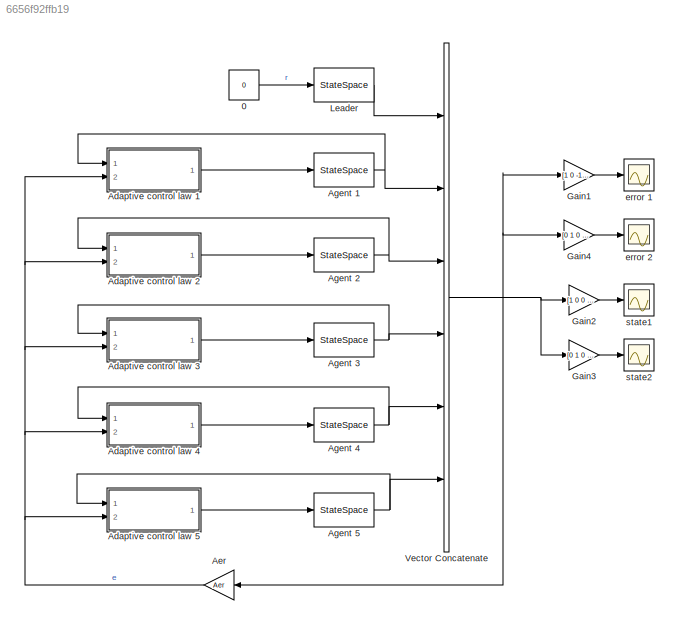
MODEL slx_6656f92ffb19
KIND model
CONFIG AbsTol = auto
CONFIG FixedStep = auto
CONFIG MaxStep = auto
CONFIG MinStep = auto
CONFIG RelTol = 1e-3
CONFIG SampleTimeConstraint = Unconstrained
CONFIG Solver = ode23tb
CONFIG SolverMode = SingleTasking
CONFIG SolverName = ode23tb
CONFIG StartTime = 0.0
CONFIG StopTime = 80
BLOCK [Constant] 0
  Value = 0
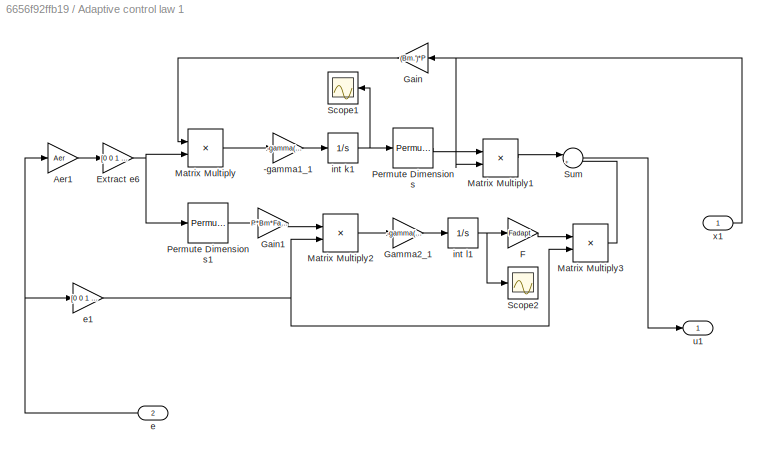
BLOCK [SubSystem] Adaptive control law 1
  Ports = [2, 1]
  RequestExecContextInheritance = off
BLOCK [Gain] Adaptive control law 1/-gamma1_1
  Gain = -gamma(1,1)
  OutDataTypeStr = Inherit: Inherit via internal rule
  ParamDataTypeStr = Inherit: Inherit via internal rule
  SaturateOnIntegerOverflow = off
BLOCK [Gain] Adaptive control law 1/Aer1
  Gain = Aer
  Multiplication = Matrix(K*u)
  OutDataTypeStr = Inherit: Inherit via internal rule
  ParamDataTypeStr = Inherit: Inherit via internal rule
  SaturateOnIntegerOverflow = off
BLOCK [Gain] Adaptive control law 1/Extract e6
  Gain = [0 0 1 0 0 0 0 0 0 0 0 0; 0 0 0 1 0 0 0 0 0 0 0 0]
  Multiplication = Matrix(K*u)
  OutDataTypeStr = Inherit: Inherit via internal rule
  ParamDataTypeStr = Inherit: Inherit via internal rule
  SaturateOnIntegerOverflow = off
BLOCK [Gain] Adaptive control law 1/F
  Gain = Fadapt
  Multiplication = Matrix(u*K)
  OutDataTypeStr = Inherit: Inherit via internal rule
  ParamDataTypeStr = Inherit: Inherit via internal rule
  SaturateOnIntegerOverflow = off
BLOCK [Gain] Adaptive control law 1/Gain
  Gain = (Bm.')*P
  Multiplication = Matrix(u*K)
  OutDataTypeStr = Inherit: Inherit via internal rule
  ParamDataTypeStr = Inherit: Inherit via internal rule
  SaturateOnIntegerOverflow = off
BLOCK [Gain] Adaptive control law 1/Gain1
  Gain = P*Bm*Fadapt
  Multiplication = Matrix(u*K)
  OutDataTypeStr = Inherit: Inherit via internal rule
  ParamDataTypeStr = Inherit: Inherit via internal rule
  SaturateOnIntegerOverflow = off
BLOCK [Gain] Adaptive control law 1/Gamma2_1 
  Gain = -gamma(2,1)
  OutDataTypeStr = Inherit: Inherit via internal rule
  ParamDataTypeStr = Inherit: Inherit via internal rule
  SaturateOnIntegerOverflow = off
BLOCK [Product] Adaptive control law 1/Matrix Multiply
  InputSameDT = off
  Multiplication = Matrix(*)
  OutDataTypeStr = Inherit: Inherit via internal rule
  Ports = [2, 1]
  RndMeth = Floor
  SaturateOnIntegerOverflow = off
BLOCK [Product] Adaptive control law 1/Matrix Multiply1
  InputSameDT = off
  Multiplication = Matrix(*)
  OutDataTypeStr = Inherit: Inherit via internal rule
  Ports = [2, 1]
  RndMeth = Floor
  SaturateOnIntegerOverflow = off
BLOCK [Product] Adaptive control law 1/Matrix Multiply2
  InputSameDT = off
  Multiplication = Matrix(*)
  OutDataTypeStr = Inherit: Inherit via internal rule
  Ports = [2, 1]
  RndMeth = Floor
  SaturateOnIntegerOverflow = off
BLOCK [Product] Adaptive control law 1/Matrix Multiply3
  InputSameDT = off
  Multiplication = Matrix(*)
  OutDataTypeStr = Inherit: Inherit via internal rule
  Ports = [2, 1]
  RndMeth = Floor
  SaturateOnIntegerOverflow = off
BLOCK [PermuteDimensions] Adaptive control law 1/Permute Dimensions
BLOCK [PermuteDimensions] Adaptive control law 1/Permute Dimensions1
BLOCK [Scope] Adaptive control law 1/Scope1
  Floating = off
  NumInputPorts = 1
  Ports = [1]
  ScopeSpecificationString = Simulink.scopes.TimeScopeBlockCfg('CurrentConfiguration', extmgr.ConfigurationSet(extmgr.Configuration('Core','General UI',true),extmgr.Configuration('Core','Source UI',true),extmgr.Configuration('Sources','WiredSimulink',true,'DataLoggingVariableName','ScopeData1'),extmgr.Configuration('Visuals','Time Domain',true,'SerializedDisplays',{struct('MinYLimReal','-0.78998','MaxYLimReal','3.39664','YLab...<+1378ch>
BLOCK [Scope] Adaptive control law 1/Scope2
  Floating = off
  NumInputPorts = 1
  Ports = [1]
  ScopeSpecificationString = Simulink.scopes.TimeScopeBlockCfg('CurrentConfiguration', extmgr.ConfigurationSet(extmgr.Configuration('Core','General UI',true),extmgr.Configuration('Core','Source UI',true),extmgr.Configuration('Sources','WiredSimulink',true,'DataLoggingVariableName','ScopeData2'),extmgr.Configuration('Visuals','Time Domain',true,'SerializedDisplays',{struct('MinYLimReal','-4.60919','MaxYLimReal','8.39916','YLab...<+1365ch>
BLOCK [Sum] Adaptive control law 1/Sum
  IconShape = round
  InputSameDT = off
  Inputs = |++
  OutDataTypeStr = Inherit: Inherit via internal rule
  Ports = [2, 1]
  SaturateOnIntegerOverflow = off
BLOCK [Inport] Adaptive control law 1/e
  IconDisplay = Port number
  Port = 2
BLOCK [Gain] Adaptive control law 1/e1
  Gain = [0 0 1 0 0 0 0 0 0 0 0 0; 0 0 0 1 0 0 0 0 0 0 0 0]
  Multiplication = Matrix(K*u)
  OutDataTypeStr = Inherit: Inherit via internal rule
  ParamDataTypeStr = Inherit: Inherit via internal rule
  SaturateOnIntegerOverflow = off
BLOCK [Integrator] Adaptive control law 1/int k1
  InitialCondition = [0;0]
  Ports = [1, 1]
BLOCK [Integrator] Adaptive control law 1/int l1
  Ports = [1, 1]
BLOCK [Outport] Adaptive control law 1/u1
  IconDisplay = Port number
BLOCK [Inport] Adaptive control law 1/x1
  IconDisplay = Port number
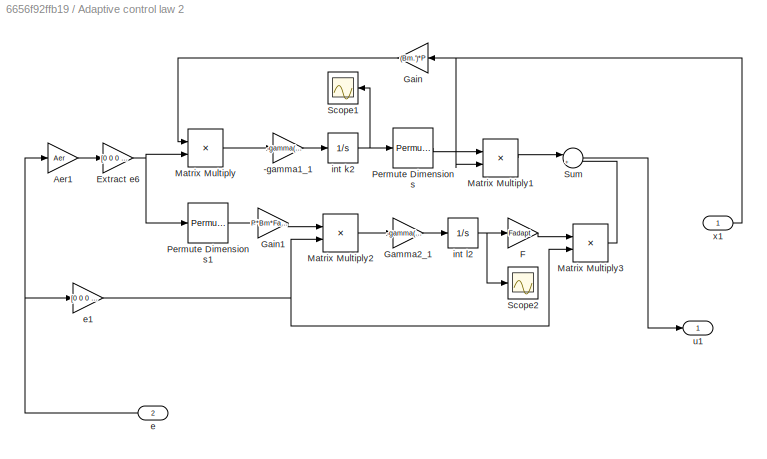
BLOCK [SubSystem] Adaptive control law 2
  Ports = [2, 1]
  RequestExecContextInheritance = off
BLOCK [Gain] Adaptive control law 2/-gamma1_1
  Gain = -gamma(1,2)
  OutDataTypeStr = Inherit: Inherit via internal rule
  ParamDataTypeStr = Inherit: Inherit via internal rule
  SaturateOnIntegerOverflow = off
BLOCK [Gain] Adaptive control law 2/Aer1
  Gain = Aer
  Multiplication = Matrix(K*u)
  OutDataTypeStr = Inherit: Inherit via internal rule
  ParamDataTypeStr = Inherit: Inherit via internal rule
  SaturateOnIntegerOverflow = off
BLOCK [Gain] Adaptive control law 2/Extract e6
  Gain = [0 0 0 0 1 0 0 0 0 0 0 0; 0 0 0 0 0 1 0 0 0 0 0 0]
  Multiplication = Matrix(K*u)
  OutDataTypeStr = Inherit: Inherit via internal rule
  ParamDataTypeStr = Inherit: Inherit via internal rule
  SaturateOnIntegerOverflow = off
BLOCK [Gain] Adaptive control law 2/F
  Gain = Fadapt
  Multiplication = Matrix(u*K)
  OutDataTypeStr = Inherit: Inherit via internal rule
  ParamDataTypeStr = Inherit: Inherit via internal rule
  SaturateOnIntegerOverflow = off
BLOCK [Gain] Adaptive control law 2/Gain
  Gain = (Bm.')*P
  Multiplication = Matrix(u*K)
  OutDataTypeStr = Inherit: Inherit via internal rule
  ParamDataTypeStr = Inherit: Inherit via internal rule
  SaturateOnIntegerOverflow = off
BLOCK [Gain] Adaptive control law 2/Gain1
  Gain = P*Bm*Fadapt
  Multiplication = Matrix(u*K)
  OutDataTypeStr = Inherit: Inherit via internal rule
  ParamDataTypeStr = Inherit: Inherit via internal rule
  SaturateOnIntegerOverflow = off
BLOCK [Gain] Adaptive control law 2/Gamma2_1 
  Gain = -gamma(2,2)
  OutDataTypeStr = Inherit: Inherit via internal rule
  ParamDataTypeStr = Inherit: Inherit via internal rule
  SaturateOnIntegerOverflow = off
BLOCK [Product] Adaptive control law 2/Matrix Multiply
  InputSameDT = off
  Multiplication = Matrix(*)
  OutDataTypeStr = Inherit: Inherit via internal rule
  Ports = [2, 1]
  RndMeth = Floor
  SaturateOnIntegerOverflow = off
BLOCK [Product] Adaptive control law 2/Matrix Multiply1
  InputSameDT = off
  Multiplication = Matrix(*)
  OutDataTypeStr = Inherit: Inherit via internal rule
  Ports = [2, 1]
  RndMeth = Floor
  SaturateOnIntegerOverflow = off
BLOCK [Product] Adaptive control law 2/Matrix Multiply2
  InputSameDT = off
  Multiplication = Matrix(*)
  OutDataTypeStr = Inherit: Inherit via internal rule
  Ports = [2, 1]
  RndMeth = Floor
  SaturateOnIntegerOverflow = off
BLOCK [Product] Adaptive control law 2/Matrix Multiply3
  InputSameDT = off
  Multiplication = Matrix(*)
  OutDataTypeStr = Inherit: Inherit via internal rule
  Ports = [2, 1]
  RndMeth = Floor
  SaturateOnIntegerOverflow = off
BLOCK [PermuteDimensions] Adaptive control law 2/Permute Dimensions
BLOCK [PermuteDimensions] Adaptive control law 2/Permute Dimensions1
BLOCK [Scope] Adaptive control law 2/Scope1
  Floating = off
  NumInputPorts = 1
  Ports = [1]
  ScopeSpecificationString = Simulink.scopes.TimeScopeBlockCfg('CurrentConfiguration', extmgr.ConfigurationSet(extmgr.Configuration('Core','General UI',true),extmgr.Configuration('Core','Source UI',true),extmgr.Configuration('Sources','WiredSimulink',true,'DataLoggingVariableName','ScopeData1'),extmgr.Configuration('Visuals','Time Domain',true,'SerializedDisplays',{struct('MinYLimReal','-6.3319','MaxYLimReal','4.74786','YLabe...<+1374ch>
BLOCK [Scope] Adaptive control law 2/Scope2
  Floating = off
  NumInputPorts = 1
  Ports = [1]
  ScopeSpecificationString = Simulink.scopes.TimeScopeBlockCfg('CurrentConfiguration', extmgr.ConfigurationSet(extmgr.Configuration('Core','General UI',true),extmgr.Configuration('Core','Source UI',true),extmgr.Configuration('Sources','WiredSimulink',true,'DataLoggingVariableName','ScopeData2'),extmgr.Configuration('Visuals','Time Domain',true,'SerializedDisplays',{struct('MinYLimReal','-1.37884','MaxYLimReal','10.74056','YLa...<+1369ch>
BLOCK [Sum] Adaptive control law 2/Sum
  IconShape = round
  InputSameDT = off
  Inputs = |++
  OutDataTypeStr = Inherit: Inherit via internal rule
  Ports = [2, 1]
  SaturateOnIntegerOverflow = off
BLOCK [Inport] Adaptive control law 2/e
  IconDisplay = Port number
  Port = 2
BLOCK [Gain] Adaptive control law 2/e1
  Gain = [0 0 0 0 1 0 0 0 0 0 0 0; 0 0 0 0 0 1 0 0 0 0 0 0]
  Multiplication = Matrix(K*u)
  OutDataTypeStr = Inherit: Inherit via internal rule
  ParamDataTypeStr = Inherit: Inherit via internal rule
  SaturateOnIntegerOverflow = off
BLOCK [Integrator] Adaptive control law 2/int k2
  InitialCondition = [0;0]
  Ports = [1, 1]
BLOCK [Integrator] Adaptive control law 2/int l2
  Ports = [1, 1]
BLOCK [Outport] Adaptive control law 2/u1
  IconDisplay = Port number
BLOCK [Inport] Adaptive control law 2/x1
  IconDisplay = Port number
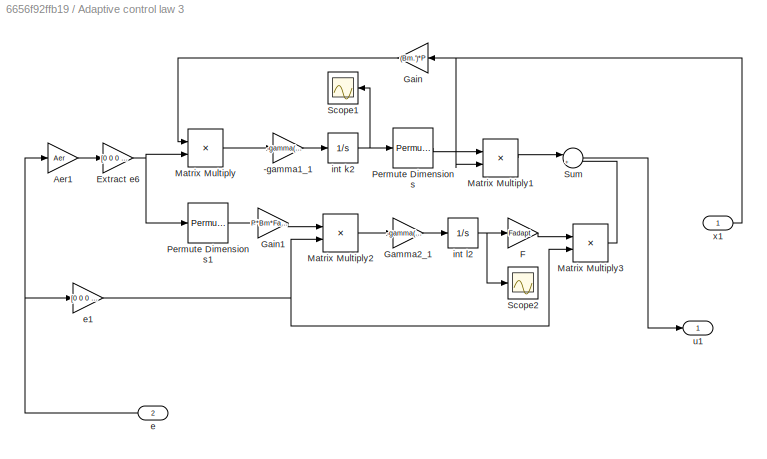
BLOCK [SubSystem] Adaptive control law 3
  Ports = [2, 1]
  RequestExecContextInheritance = off
BLOCK [Gain] Adaptive control law 3/-gamma1_1
  Gain = -gamma(1,3)
  OutDataTypeStr = Inherit: Inherit via internal rule
  ParamDataTypeStr = Inherit: Inherit via internal rule
  SaturateOnIntegerOverflow = off
BLOCK [Gain] Adaptive control law 3/Aer1
  Gain = Aer
  Multiplication = Matrix(K*u)
  OutDataTypeStr = Inherit: Inherit via internal rule
  ParamDataTypeStr = Inherit: Inherit via internal rule
  SaturateOnIntegerOverflow = off
BLOCK [Gain] Adaptive control law 3/Extract e6
  Gain = [0 0 0 0 0 0 1 0 0 0 0 0; 0 0 0 0 0 0 0 1 0 0 0 0]
  Multiplication = Matrix(K*u)
  OutDataTypeStr = Inherit: Inherit via internal rule
  ParamDataTypeStr = Inherit: Inherit via internal rule
  SaturateOnIntegerOverflow = off
BLOCK [Gain] Adaptive control law 3/F
  Gain = Fadapt
  Multiplication = Matrix(u*K)
  OutDataTypeStr = Inherit: Inherit via internal rule
  ParamDataTypeStr = Inherit: Inherit via internal rule
  SaturateOnIntegerOverflow = off
BLOCK [Gain] Adaptive control law 3/Gain
  Gain = (Bm.')*P
  Multiplication = Matrix(u*K)
  OutDataTypeStr = Inherit: Inherit via internal rule
  ParamDataTypeStr = Inherit: Inherit via internal rule
  SaturateOnIntegerOverflow = off
BLOCK [Gain] Adaptive control law 3/Gain1
  Gain = P*Bm*Fadapt
  Multiplication = Matrix(u*K)
  OutDataTypeStr = Inherit: Inherit via internal rule
  ParamDataTypeStr = Inherit: Inherit via internal rule
  SaturateOnIntegerOverflow = off
BLOCK [Gain] Adaptive control law 3/Gamma2_1 
  Gain = -gamma(2,3)
  OutDataTypeStr = Inherit: Inherit via internal rule
  ParamDataTypeStr = Inherit: Inherit via internal rule
  SaturateOnIntegerOverflow = off
BLOCK [Product] Adaptive control law 3/Matrix Multiply
  InputSameDT = off
  Multiplication = Matrix(*)
  OutDataTypeStr = Inherit: Inherit via internal rule
  Ports = [2, 1]
  RndMeth = Floor
  SaturateOnIntegerOverflow = off
BLOCK [Product] Adaptive control law 3/Matrix Multiply1
  InputSameDT = off
  Multiplication = Matrix(*)
  OutDataTypeStr = Inherit: Inherit via internal rule
  Ports = [2, 1]
  RndMeth = Floor
  SaturateOnIntegerOverflow = off
BLOCK [Product] Adaptive control law 3/Matrix Multiply2
  InputSameDT = off
  Multiplication = Matrix(*)
  OutDataTypeStr = Inherit: Inherit via internal rule
  Ports = [2, 1]
  RndMeth = Floor
  SaturateOnIntegerOverflow = off
BLOCK [Product] Adaptive control law 3/Matrix Multiply3
  InputSameDT = off
  Multiplication = Matrix(*)
  OutDataTypeStr = Inherit: Inherit via internal rule
  Ports = [2, 1]
  RndMeth = Floor
  SaturateOnIntegerOverflow = off
BLOCK [PermuteDimensions] Adaptive control law 3/Permute Dimensions
BLOCK [PermuteDimensions] Adaptive control law 3/Permute Dimensions1
BLOCK [Scope] Adaptive control law 3/Scope1
  Floating = off
  NumInputPorts = 1
  Ports = [1]
  ScopeSpecificationString = Simulink.scopes.TimeScopeBlockCfg('CurrentConfiguration', extmgr.ConfigurationSet(extmgr.Configuration('Core','General UI',true),extmgr.Configuration('Core','Source UI',true),extmgr.Configuration('Sources','WiredSimulink',true,'DataLoggingVariableName','ScopeData1'),extmgr.Configuration('Visuals','Time Domain',true,'SerializedDisplays',{struct('MinYLimReal','-1.16291','MaxYLimReal','3.50342','YLab...<+1378ch>
BLOCK [Scope] Adaptive control law 3/Scope2
  Floating = off
  NumInputPorts = 1
  Ports = [1]
  ScopeSpecificationString = Simulink.scopes.TimeScopeBlockCfg('CurrentConfiguration', extmgr.ConfigurationSet(extmgr.Configuration('Core','General UI',true),extmgr.Configuration('Core','Source UI',true),extmgr.Configuration('Sources','WiredSimulink',true,'DataLoggingVariableName','ScopeData2'),extmgr.Configuration('Visuals','Time Domain',true,'SerializedDisplays',{struct('MinYLimReal','-6.26553','MaxYLimReal','6.28429','YLab...<+1365ch>
BLOCK [Sum] Adaptive control law 3/Sum
  IconShape = round
  InputSameDT = off
  Inputs = |++
  OutDataTypeStr = Inherit: Inherit via internal rule
  Ports = [2, 1]
  SaturateOnIntegerOverflow = off
BLOCK [Inport] Adaptive control law 3/e
  IconDisplay = Port number
  Port = 2
BLOCK [Gain] Adaptive control law 3/e1
  Gain = [0 0 0 0 0 0 1 0 0 0 0 0; 0 0 0 0 0 0 0 1 0 0 0 0]
  Multiplication = Matrix(K*u)
  OutDataTypeStr = Inherit: Inherit via internal rule
  ParamDataTypeStr = Inherit: Inherit via internal rule
  SaturateOnIntegerOverflow = off
BLOCK [Integrator] Adaptive control law 3/int k2
  InitialCondition = [0;0]
  Ports = [1, 1]
BLOCK [Integrator] Adaptive control law 3/int l2
  Ports = [1, 1]
BLOCK [Outport] Adaptive control law 3/u1
  IconDisplay = Port number
BLOCK [Inport] Adaptive control law 3/x1
  IconDisplay = Port number
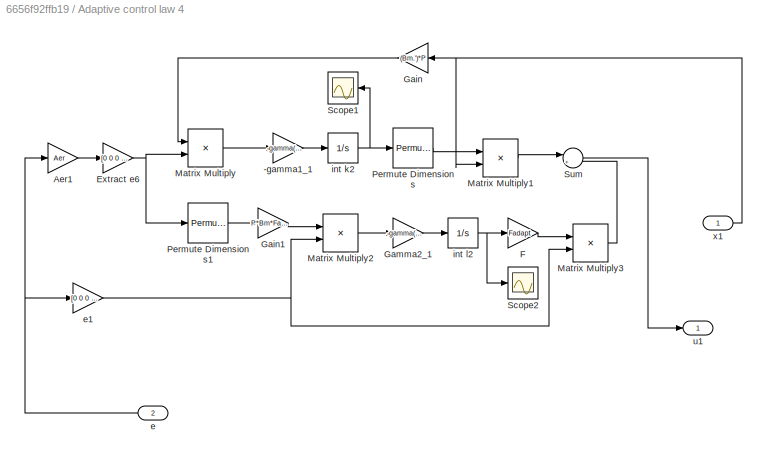
BLOCK [SubSystem] Adaptive control law 4
  Ports = [2, 1]
  RequestExecContextInheritance = off
BLOCK [Gain] Adaptive control law 4/-gamma1_1
  Gain = -gamma(1,4)
  OutDataTypeStr = Inherit: Inherit via internal rule
  ParamDataTypeStr = Inherit: Inherit via internal rule
  SaturateOnIntegerOverflow = off
BLOCK [Gain] Adaptive control law 4/Aer1
  Gain = Aer
  Multiplication = Matrix(K*u)
  OutDataTypeStr = Inherit: Inherit via internal rule
  ParamDataTypeStr = Inherit: Inherit via internal rule
  SaturateOnIntegerOverflow = off
BLOCK [Gain] Adaptive control law 4/Extract e6
  Gain = [0 0 0 0 0 0 0 0 1 0 0 0; 0 0 0 0 0 0 0 0 0 1 0 0]
  Multiplication = Matrix(K*u)
  OutDataTypeStr = Inherit: Inherit via internal rule
  ParamDataTypeStr = Inherit: Inherit via internal rule
  SaturateOnIntegerOverflow = off
BLOCK [Gain] Adaptive control law 4/F
  Gain = Fadapt
  Multiplication = Matrix(u*K)
  OutDataTypeStr = Inherit: Inherit via internal rule
  ParamDataTypeStr = Inherit: Inherit via internal rule
  SaturateOnIntegerOverflow = off
BLOCK [Gain] Adaptive control law 4/Gain
  Gain = (Bm.')*P
  Multiplication = Matrix(u*K)
  OutDataTypeStr = Inherit: Inherit via internal rule
  ParamDataTypeStr = Inherit: Inherit via internal rule
  SaturateOnIntegerOverflow = off
BLOCK [Gain] Adaptive control law 4/Gain1
  Gain = P*Bm*Fadapt
  Multiplication = Matrix(u*K)
  OutDataTypeStr = Inherit: Inherit via internal rule
  ParamDataTypeStr = Inherit: Inherit via internal rule
  SaturateOnIntegerOverflow = off
BLOCK [Gain] Adaptive control law 4/Gamma2_1 
  Gain = -gamma(2,4)
  OutDataTypeStr = Inherit: Inherit via internal rule
  ParamDataTypeStr = Inherit: Inherit via internal rule
  SaturateOnIntegerOverflow = off
BLOCK [Product] Adaptive control law 4/Matrix Multiply
  InputSameDT = off
  Multiplication = Matrix(*)
  OutDataTypeStr = Inherit: Inherit via internal rule
  Ports = [2, 1]
  RndMeth = Floor
  SaturateOnIntegerOverflow = off
BLOCK [Product] Adaptive control law 4/Matrix Multiply1
  InputSameDT = off
  Multiplication = Matrix(*)
  OutDataTypeStr = Inherit: Inherit via internal rule
  Ports = [2, 1]
  RndMeth = Floor
  SaturateOnIntegerOverflow = off
BLOCK [Product] Adaptive control law 4/Matrix Multiply2
  InputSameDT = off
  Multiplication = Matrix(*)
  OutDataTypeStr = Inherit: Inherit via internal rule
  Ports = [2, 1]
  RndMeth = Floor
  SaturateOnIntegerOverflow = off
BLOCK [Product] Adaptive control law 4/Matrix Multiply3
  InputSameDT = off
  Multiplication = Matrix(*)
  OutDataTypeStr = Inherit: Inherit via internal rule
  Ports = [2, 1]
  RndMeth = Floor
  SaturateOnIntegerOverflow = off
BLOCK [PermuteDimensions] Adaptive control law 4/Permute Dimensions
BLOCK [PermuteDimensions] Adaptive control law 4/Permute Dimensions1
BLOCK [Scope] Adaptive control law 4/Scope1
  Floating = off
  NumInputPorts = 1
  Ports = [1]
  ScopeSpecificationString = Simulink.scopes.TimeScopeBlockCfg('CurrentConfiguration', extmgr.ConfigurationSet(extmgr.Configuration('Core','General UI',true),extmgr.Configuration('Core','Source UI',true),extmgr.Configuration('Sources','WiredSimulink',true,'DataLoggingVariableName','ScopeData1'),extmgr.Configuration('Visuals','Time Domain',true,'SerializedDisplays',{struct('MinYLimReal','-14.63288','MaxYLimReal','13.81064','YL...<+1384ch>
BLOCK [Scope] Adaptive control law 4/Scope2
  Floating = off
  NumInputPorts = 1
  Ports = [1]
  ScopeSpecificationString = Simulink.scopes.TimeScopeBlockCfg('CurrentConfiguration', extmgr.ConfigurationSet(extmgr.Configuration('Core','General UI',true),extmgr.Configuration('Core','Source UI',true),extmgr.Configuration('Sources','WiredSimulink',true,'DataLoggingVariableName','ScopeData2'),extmgr.Configuration('Visuals','Time Domain',true,'SerializedDisplays',{struct('MinYLimReal','-2.43403','MaxYLimReal','17.75472','YLa...<+1369ch>
BLOCK [Sum] Adaptive control law 4/Sum
  IconShape = round
  InputSameDT = off
  Inputs = |++
  OutDataTypeStr = Inherit: Inherit via internal rule
  Ports = [2, 1]
  SaturateOnIntegerOverflow = off
BLOCK [Inport] Adaptive control law 4/e
  IconDisplay = Port number
  Port = 2
BLOCK [Gain] Adaptive control law 4/e1
  Gain = [0 0 0 0 0 0 0 0 1 0 0 0; 0 0 0 0 0 0 0 0 0 1 0 0]
  Multiplication = Matrix(K*u)
  OutDataTypeStr = Inherit: Inherit via internal rule
  ParamDataTypeStr = Inherit: Inherit via internal rule
  SaturateOnIntegerOverflow = off
BLOCK [Integrator] Adaptive control law 4/int k2
  InitialCondition = [0;0]
  Ports = [1, 1]
BLOCK [Integrator] Adaptive control law 4/int l2
  Ports = [1, 1]
BLOCK [Outport] Adaptive control law 4/u1
  IconDisplay = Port number
BLOCK [Inport] Adaptive control law 4/x1
  IconDisplay = Port number
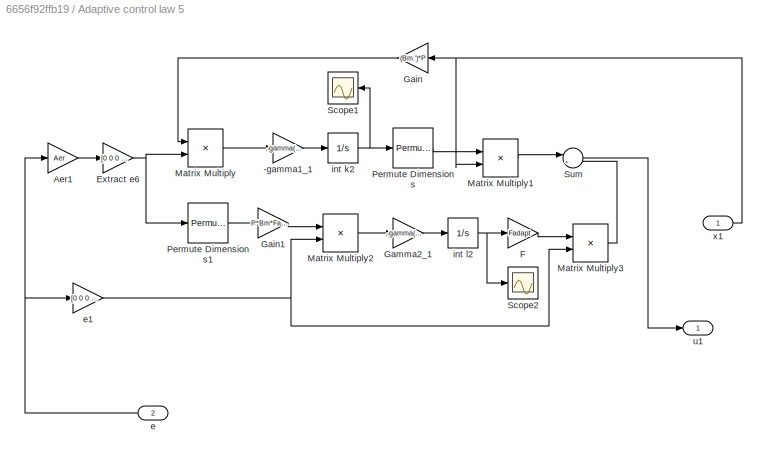
BLOCK [SubSystem] Adaptive control law 5
  Ports = [2, 1]
  RequestExecContextInheritance = off
BLOCK [Gain] Adaptive control law 5/-gamma1_1
  Gain = -gamma(1,5)
  OutDataTypeStr = Inherit: Inherit via internal rule
  ParamDataTypeStr = Inherit: Inherit via internal rule
  SaturateOnIntegerOverflow = off
BLOCK [Gain] Adaptive control law 5/Aer1
  Gain = Aer
  Multiplication = Matrix(K*u)
  OutDataTypeStr = Inherit: Inherit via internal rule
  ParamDataTypeStr = Inherit: Inherit via internal rule
  SaturateOnIntegerOverflow = off
BLOCK [Gain] Adaptive control law 5/Extract e6
  Gain = [0 0 0 0 0 0 0 0 0 0 1 0; 0 0 0 0 0 0 0 0 0 0 0 1]
  Multiplication = Matrix(K*u)
  OutDataTypeStr = Inherit: Inherit via internal rule
  ParamDataTypeStr = Inherit: Inherit via internal rule
  SaturateOnIntegerOverflow = off
BLOCK [Gain] Adaptive control law 5/F
  Gain = Fadapt
  Multiplication = Matrix(u*K)
  OutDataTypeStr = Inherit: Inherit via internal rule
  ParamDataTypeStr = Inherit: Inherit via internal rule
  SaturateOnIntegerOverflow = off
BLOCK [Gain] Adaptive control law 5/Gain
  Gain = (Bm.')*P
  Multiplication = Matrix(u*K)
  OutDataTypeStr = Inherit: Inherit via internal rule
  ParamDataTypeStr = Inherit: Inherit via internal rule
  SaturateOnIntegerOverflow = off
BLOCK [Gain] Adaptive control law 5/Gain1
  Gain = P*Bm*Fadapt
  Multiplication = Matrix(u*K)
  OutDataTypeStr = Inherit: Inherit via internal rule
  ParamDataTypeStr = Inherit: Inherit via internal rule
  SaturateOnIntegerOverflow = off
BLOCK [Gain] Adaptive control law 5/Gamma2_1 
  Gain = -gamma(2,5)
  OutDataTypeStr = Inherit: Inherit via internal rule
  ParamDataTypeStr = Inherit: Inherit via internal rule
  SaturateOnIntegerOverflow = off
BLOCK [Product] Adaptive control law 5/Matrix Multiply
  InputSameDT = off
  Multiplication = Matrix(*)
  OutDataTypeStr = Inherit: Inherit via internal rule
  Ports = [2, 1]
  RndMeth = Floor
  SaturateOnIntegerOverflow = off
BLOCK [Product] Adaptive control law 5/Matrix Multiply1
  InputSameDT = off
  Multiplication = Matrix(*)
  OutDataTypeStr = Inherit: Inherit via internal rule
  Ports = [2, 1]
  RndMeth = Floor
  SaturateOnIntegerOverflow = off
BLOCK [Product] Adaptive control law 5/Matrix Multiply2
  InputSameDT = off
  Multiplication = Matrix(*)
  OutDataTypeStr = Inherit: Inherit via internal rule
  Ports = [2, 1]
  RndMeth = Floor
  SaturateOnIntegerOverflow = off
BLOCK [Product] Adaptive control law 5/Matrix Multiply3
  InputSameDT = off
  Multiplication = Matrix(*)
  OutDataTypeStr = Inherit: Inherit via internal rule
  Ports = [2, 1]
  RndMeth = Floor
  SaturateOnIntegerOverflow = off
BLOCK [PermuteDimensions] Adaptive control law 5/Permute Dimensions
BLOCK [PermuteDimensions] Adaptive control law 5/Permute Dimensions1
BLOCK [Scope] Adaptive control law 5/Scope1
  Floating = off
  NumInputPorts = 1
  Ports = [1]
  ScopeSpecificationString = Simulink.scopes.TimeScopeBlockCfg('CurrentConfiguration', extmgr.ConfigurationSet(extmgr.Configuration('Core','General UI',true),extmgr.Configuration('Core','Source UI',true),extmgr.Configuration('Sources','WiredSimulink',true,'DataLoggingVariableName','ScopeData1'),extmgr.Configuration('Visuals','Time Domain',true,'SerializedDisplays',{struct('MinYLimReal','-1.16291','MaxYLimReal','3.50342','YLab...<+1378ch>
BLOCK [Scope] Adaptive control law 5/Scope2
  Floating = off
  NumInputPorts = 1
  Ports = [1]
  ScopeSpecificationString = Simulink.scopes.TimeScopeBlockCfg('CurrentConfiguration', extmgr.ConfigurationSet(extmgr.Configuration('Core','General UI',true),extmgr.Configuration('Core','Source UI',true),extmgr.Configuration('Sources','WiredSimulink',true,'DataLoggingVariableName','ScopeData2'),extmgr.Configuration('Visuals','Time Domain',true,'SerializedDisplays',{struct('MinYLimReal','-6.26553','MaxYLimReal','6.28429','YLab...<+1365ch>
BLOCK [Sum] Adaptive control law 5/Sum
  IconShape = round
  InputSameDT = off
  Inputs = |++
  OutDataTypeStr = Inherit: Inherit via internal rule
  Ports = [2, 1]
  SaturateOnIntegerOverflow = off
BLOCK [Inport] Adaptive control law 5/e
  IconDisplay = Port number
  Port = 2
BLOCK [Gain] Adaptive control law 5/e1
  Gain = [0 0 0 0 0 0 0 0 0 0 1 0; 0 0 0 0 0 0 0 0 0 0 0 1]
  Multiplication = Matrix(K*u)
  OutDataTypeStr = Inherit: Inherit via internal rule
  ParamDataTypeStr = Inherit: Inherit via internal rule
  SaturateOnIntegerOverflow = off
BLOCK [Integrator] Adaptive control law 5/int k2
  InitialCondition = [0;0]
  Ports = [1, 1]
BLOCK [Integrator] Adaptive control law 5/int l2
  Ports = [1, 1]
BLOCK [Outport] Adaptive control law 5/u1
  IconDisplay = Port number
BLOCK [Inport] Adaptive control law 5/x1
  IconDisplay = Port number
BLOCK [Gain] Aer
  Gain = Aer
  Multiplication = Matrix(K*u)
  OutDataTypeStr = Inherit: Inherit via internal rule
  ParamDataTypeStr = Inherit: Inherit via internal rule
  SaturateOnIntegerOverflow = off
BLOCK [StateSpace] Agent 1
  A = A1
  B = B1
  C = eye(2)
  D = zeros(2,1)
  Ports = [1, 1]
  X0 = x01
BLOCK [StateSpace] Agent 2
  A = A2
  B = B2
  C = eye(2)
  D = zeros(2,1)
  Ports = [1, 1]
  X0 = x02
BLOCK [StateSpace] Agent 3
  A = A3
  B = B3
  C = eye(2)
  D = zeros(2,1)
  Ports = [1, 1]
  X0 = x03
BLOCK [StateSpace] Agent 4
  A = A4
  B = B4
  C = eye(2)
  D = zeros(2,1)
  Ports = [1, 1]
  X0 = x04
BLOCK [StateSpace] Agent 5
  A = A5
  B = B5
  C = eye(2)
  D = zeros(2,1)
  Ports = [1, 1]
  X0 = x05
BLOCK [Gain] Gain1
  Gain = [1 0 -1 0 0 0 0 0 0 0 0 0;1 0 0 0 -1 0 0 0 0 0 0 0;1 0 0 0 0 0 -1 0 0 0 0 0;1 0 0 0 0 0 0 0 -1 0 0 0;1 0 0 0 0 0 0 0 0 0 -1 0;]
  Multiplication = Matrix(K*u)
  OutDataTypeStr = Inherit: Inherit via internal rule
  ParamDataTypeStr = Inherit: Inherit via internal rule
  SaturateOnIntegerOverflow = off
BLOCK [Gain] Gain2
  Gain = [1 0 0 0 0 0 0 0 0 0 0 0;0 0 1 0 0 0 0 0 0 0 0 0;0 0 0 0 1 0 0 0 0 0 0 0;0 0 0 0 0 0 1 0 0 0 0 0;0 0 0 0 0 0 0 0 1 0 0 0;0 0 0 0 0 0 0 0 0 0 1 0]
  Multiplication = Matrix(K*u)
  OutDataTypeStr = Inherit: Inherit via internal rule
  ParamDataTypeStr = Inherit: Inherit via internal rule
  SaturateOnIntegerOverflow = off
BLOCK [Gain] Gain3
  Gain = [0 1 0 0 0 0 0 0 0 0 0 0;0 0 0 1 0 0 0 0 0 0 0 0;0 0 0 0 0 1 0 0 0 0 0 0;0 0 0 0 0 0 0 1 0 0 0 0;0 0 0 0 0 0 0 0 0 1 0 0; 0 0 0 0 0 0 0 0 0 0 0 1]
  Multiplication = Matrix(K*u)
  OutDataTypeStr = Inherit: Inherit via internal rule
  ParamDataTypeStr = Inherit: Inherit via internal rule
  SaturateOnIntegerOverflow = off
BLOCK [Gain] Gain4
  Gain = [0 1 0 -1 0 0 0 0 0 0 0 0;0 1 0 0 0 -1 0 0 0 0 0 0;0 1 0 0 0 0 0 -1 0 0 0 0;0 1 0 0 0 0 0 0 0 -1 0 0;0 1 0 0 0 0 0 0 0 0 0 -1;]
  Multiplication = Matrix(K*u)
  OutDataTypeStr = Inherit: Inherit via internal rule
  ParamDataTypeStr = Inherit: Inherit via internal rule
  SaturateOnIntegerOverflow = off
BLOCK [StateSpace] Leader
  A = Am
  B = Bm
  C = Cm
  D = Dm
  Ports = [1, 1]
  X0 = x0m
BLOCK [Concatenate] Vector Concatenate
  NumInputs = 6
  Ports = [6, 1]
BLOCK [Scope] error 1
  Floating = off
  NumInputPorts = 1
  Ports = [1]
  ScopeSpecificationString = Simulink.scopes.TimeScopeBlockCfg('CurrentConfiguration', extmgr.ConfigurationSet(extmgr.Configuration('Core','General UI',true),extmgr.Configuration('Core','Source UI',true),extmgr.Configuration('Sources','WiredSimulink',true,'DataLoggingVariableName','ScopeData1'),extmgr.Configuration('Visuals','Time Domain',true,'SerializedDisplays',{struct('MinYLimReal','-1.30674','MaxYLimReal','1.76068','YLab...<+1406ch>
BLOCK [Scope] error 2
  Floating = off
  NumInputPorts = 1
  Ports = [1]
  ScopeSpecificationString = Simulink.scopes.TimeScopeBlockCfg('CurrentConfiguration', extmgr.ConfigurationSet(extmgr.Configuration('Core','General UI',true),extmgr.Configuration('Core','Source UI',true),extmgr.Configuration('Sources','WiredSimulink',true,'DataLoggingVariableName','ScopeData2'),extmgr.Configuration('Visuals','Time Domain',true,'SerializedDisplays',{struct('MinYLimReal','-1.86826','MaxYLimReal','6.34084','YLab...<+1406ch>
BLOCK [Scope] state1
  Floating = off
  NumInputPorts = 1
  Ports = [1]
  ScopeSpecificationString = Simulink.scopes.TimeScopeBlockCfg('CurrentConfiguration', extmgr.ConfigurationSet(extmgr.Configuration('Core','General UI',true),extmgr.Configuration('Core','Source UI',true),extmgr.Configuration('Sources','WiredSimulink',true,'DataLoggingVariableName','ScopeData1'),extmgr.Configuration('Visuals','Time Domain',true,'SerializedDisplays',{struct('MinYLimReal','-1.78564','MaxYLimReal','1.78571','YLab...<+1416ch>
BLOCK [Scope] state2
  Floating = off
  NumInputPorts = 1
  Ports = [1]
  ScopeSpecificationString = Simulink.scopes.TimeScopeBlockCfg('CurrentConfiguration', extmgr.ConfigurationSet(extmgr.Configuration('Core','General UI',true),extmgr.Configuration('Core','Source UI',true),extmgr.Configuration('Sources','WiredSimulink',true,'DataLoggingVariableName','ScopeData2'),extmgr.Configuration('Visuals','Time Domain',true,'SerializedDisplays',{struct('MinYLimReal','-5.33379','MaxYLimReal','2.7582','YLabe...<+1414ch>
LINE 0:1 -> Leader:1
LINE Adaptive control law 1/-gamma1_1:1 -> Adaptive control law 1/int k1:1
LINE Adaptive control law 1/Aer1:1 -> Adaptive control law 1/Extract e6:1
NET Adaptive control law 1/Extract e6:1 -> Adaptive control law 1/Matrix Multiply:2, Adaptive control law 1/Permute Dimensions1:1
LINE Adaptive control law 1/F:1 -> Adaptive control law 1/Matrix Multiply3:1
LINE Adaptive control law 1/Gain1:1 -> Adaptive control law 1/Matrix Multiply2:1
LINE Adaptive control law 1/Gain:1 -> Adaptive control law 1/Matrix Multiply:1
LINE Adaptive control law 1/Gamma2_1 :1 -> Adaptive control law 1/int l1:1
LINE Adaptive control law 1/Matrix Multiply1:1 -> Adaptive control law 1/Sum:1
LINE Adaptive control law 1/Matrix Multiply2:1 -> Adaptive control law 1/Gamma2_1 :1
LINE Adaptive control law 1/Matrix Multiply3:1 -> Adaptive control law 1/Sum:2
LINE Adaptive control law 1/Matrix Multiply:1 -> Adaptive control law 1/-gamma1_1:1
LINE Adaptive control law 1/Permute Dimensions1:1 -> Adaptive control law 1/Gain1:1
LINE Adaptive control law 1/Permute Dimensions:1 -> Adaptive control law 1/Matrix Multiply1:1
LINE Adaptive control law 1/Sum:1 -> Adaptive control law 1/u1:1
NET Adaptive control law 1/e1:1 -> Adaptive control law 1/Matrix Multiply2:2, Adaptive control law 1/Matrix Multiply3:2
NET Adaptive control law 1/e:1 -> Adaptive control law 1/Aer1:1, Adaptive control law 1/e1:1
NET Adaptive control law 1/int k1:1 -> Adaptive control law 1/Permute Dimensions:1, Adaptive control law 1/Scope1:1
NET Adaptive control law 1/int l1:1 -> Adaptive control law 1/F:1, Adaptive control law 1/Scope2:1
NET Adaptive control law 1/x1:1 -> Adaptive control law 1/Gain:1, Adaptive control law 1/Matrix Multiply1:2
LINE Adaptive control law 1:1 -> Agent 1:1
LINE Adaptive control law 2/-gamma1_1:1 -> Adaptive control law 2/int k2:1
LINE Adaptive control law 2/Aer1:1 -> Adaptive control law 2/Extract e6:1
NET Adaptive control law 2/Extract e6:1 -> Adaptive control law 2/Matrix Multiply:2, Adaptive control law 2/Permute Dimensions1:1
LINE Adaptive control law 2/F:1 -> Adaptive control law 2/Matrix Multiply3:1
LINE Adaptive control law 2/Gain1:1 -> Adaptive control law 2/Matrix Multiply2:1
LINE Adaptive control law 2/Gain:1 -> Adaptive control law 2/Matrix Multiply:1
LINE Adaptive control law 2/Gamma2_1 :1 -> Adaptive control law 2/int l2:1
LINE Adaptive control law 2/Matrix Multiply1:1 -> Adaptive control law 2/Sum:1
LINE Adaptive control law 2/Matrix Multiply2:1 -> Adaptive control law 2/Gamma2_1 :1
LINE Adaptive control law 2/Matrix Multiply3:1 -> Adaptive control law 2/Sum:2
LINE Adaptive control law 2/Matrix Multiply:1 -> Adaptive control law 2/-gamma1_1:1
LINE Adaptive control law 2/Permute Dimensions1:1 -> Adaptive control law 2/Gain1:1
LINE Adaptive control law 2/Permute Dimensions:1 -> Adaptive control law 2/Matrix Multiply1:1
LINE Adaptive control law 2/Sum:1 -> Adaptive control law 2/u1:1
NET Adaptive control law 2/e1:1 -> Adaptive control law 2/Matrix Multiply2:2, Adaptive control law 2/Matrix Multiply3:2
NET Adaptive control law 2/e:1 -> Adaptive control law 2/Aer1:1, Adaptive control law 2/e1:1
NET Adaptive control law 2/int k2:1 -> Adaptive control law 2/Permute Dimensions:1, Adaptive control law 2/Scope1:1
NET Adaptive control law 2/int l2:1 -> Adaptive control law 2/F:1, Adaptive control law 2/Scope2:1
NET Adaptive control law 2/x1:1 -> Adaptive control law 2/Gain:1, Adaptive control law 2/Matrix Multiply1:2
LINE Adaptive control law 2:1 -> Agent 2:1
LINE Adaptive control law 3/-gamma1_1:1 -> Adaptive control law 3/int k2:1
LINE Adaptive control law 3/Aer1:1 -> Adaptive control law 3/Extract e6:1
NET Adaptive control law 3/Extract e6:1 -> Adaptive control law 3/Matrix Multiply:2, Adaptive control law 3/Permute Dimensions1:1
LINE Adaptive control law 3/F:1 -> Adaptive control law 3/Matrix Multiply3:1
LINE Adaptive control law 3/Gain1:1 -> Adaptive control law 3/Matrix Multiply2:1
LINE Adaptive control law 3/Gain:1 -> Adaptive control law 3/Matrix Multiply:1
LINE Adaptive control law 3/Gamma2_1 :1 -> Adaptive control law 3/int l2:1
LINE Adaptive control law 3/Matrix Multiply1:1 -> Adaptive control law 3/Sum:1
LINE Adaptive control law 3/Matrix Multiply2:1 -> Adaptive control law 3/Gamma2_1 :1
LINE Adaptive control law 3/Matrix Multiply3:1 -> Adaptive control law 3/Sum:2
LINE Adaptive control law 3/Matrix Multiply:1 -> Adaptive control law 3/-gamma1_1:1
LINE Adaptive control law 3/Permute Dimensions1:1 -> Adaptive control law 3/Gain1:1
LINE Adaptive control law 3/Permute Dimensions:1 -> Adaptive control law 3/Matrix Multiply1:1
LINE Adaptive control law 3/Sum:1 -> Adaptive control law 3/u1:1
NET Adaptive control law 3/e1:1 -> Adaptive control law 3/Matrix Multiply2:2, Adaptive control law 3/Matrix Multiply3:2
NET Adaptive control law 3/e:1 -> Adaptive control law 3/Aer1:1, Adaptive control law 3/e1:1
NET Adaptive control law 3/int k2:1 -> Adaptive control law 3/Permute Dimensions:1, Adaptive control law 3/Scope1:1
NET Adaptive control law 3/int l2:1 -> Adaptive control law 3/F:1, Adaptive control law 3/Scope2:1
NET Adaptive control law 3/x1:1 -> Adaptive control law 3/Gain:1, Adaptive control law 3/Matrix Multiply1:2
LINE Adaptive control law 3:1 -> Agent 3:1
LINE Adaptive control law 4/-gamma1_1:1 -> Adaptive control law 4/int k2:1
LINE Adaptive control law 4/Aer1:1 -> Adaptive control law 4/Extract e6:1
NET Adaptive control law 4/Extract e6:1 -> Adaptive control law 4/Matrix Multiply:2, Adaptive control law 4/Permute Dimensions1:1
LINE Adaptive control law 4/F:1 -> Adaptive control law 4/Matrix Multiply3:1
LINE Adaptive control law 4/Gain1:1 -> Adaptive control law 4/Matrix Multiply2:1
LINE Adaptive control law 4/Gain:1 -> Adaptive control law 4/Matrix Multiply:1
LINE Adaptive control law 4/Gamma2_1 :1 -> Adaptive control law 4/int l2:1
LINE Adaptive control law 4/Matrix Multiply1:1 -> Adaptive control law 4/Sum:1
LINE Adaptive control law 4/Matrix Multiply2:1 -> Adaptive control law 4/Gamma2_1 :1
LINE Adaptive control law 4/Matrix Multiply3:1 -> Adaptive control law 4/Sum:2
LINE Adaptive control law 4/Matrix Multiply:1 -> Adaptive control law 4/-gamma1_1:1
LINE Adaptive control law 4/Permute Dimensions1:1 -> Adaptive control law 4/Gain1:1
LINE Adaptive control law 4/Permute Dimensions:1 -> Adaptive control law 4/Matrix Multiply1:1
LINE Adaptive control law 4/Sum:1 -> Adaptive control law 4/u1:1
NET Adaptive control law 4/e1:1 -> Adaptive control law 4/Matrix Multiply2:2, Adaptive control law 4/Matrix Multiply3:2
NET Adaptive control law 4/e:1 -> Adaptive control law 4/Aer1:1, Adaptive control law 4/e1:1
NET Adaptive control law 4/int k2:1 -> Adaptive control law 4/Permute Dimensions:1, Adaptive control law 4/Scope1:1
NET Adaptive control law 4/int l2:1 -> Adaptive control law 4/F:1, Adaptive control law 4/Scope2:1
NET Adaptive control law 4/x1:1 -> Adaptive control law 4/Gain:1, Adaptive control law 4/Matrix Multiply1:2
LINE Adaptive control law 4:1 -> Agent 4:1
LINE Adaptive control law 5/-gamma1_1:1 -> Adaptive control law 5/int k2:1
LINE Adaptive control law 5/Aer1:1 -> Adaptive control law 5/Extract e6:1
NET Adaptive control law 5/Extract e6:1 -> Adaptive control law 5/Matrix Multiply:2, Adaptive control law 5/Permute Dimensions1:1
LINE Adaptive control law 5/F:1 -> Adaptive control law 5/Matrix Multiply3:1
LINE Adaptive control law 5/Gain1:1 -> Adaptive control law 5/Matrix Multiply2:1
LINE Adaptive control law 5/Gain:1 -> Adaptive control law 5/Matrix Multiply:1
LINE Adaptive control law 5/Gamma2_1 :1 -> Adaptive control law 5/int l2:1
LINE Adaptive control law 5/Matrix Multiply1:1 -> Adaptive control law 5/Sum:1
LINE Adaptive control law 5/Matrix Multiply2:1 -> Adaptive control law 5/Gamma2_1 :1
LINE Adaptive control law 5/Matrix Multiply3:1 -> Adaptive control law 5/Sum:2
LINE Adaptive control law 5/Matrix Multiply:1 -> Adaptive control law 5/-gamma1_1:1
LINE Adaptive control law 5/Permute Dimensions1:1 -> Adaptive control law 5/Gain1:1
LINE Adaptive control law 5/Permute Dimensions:1 -> Adaptive control law 5/Matrix Multiply1:1
LINE Adaptive control law 5/Sum:1 -> Adaptive control law 5/u1:1
NET Adaptive control law 5/e1:1 -> Adaptive control law 5/Matrix Multiply2:2, Adaptive control law 5/Matrix Multiply3:2
NET Adaptive control law 5/e:1 -> Adaptive control law 5/Aer1:1, Adaptive control law 5/e1:1
NET Adaptive control law 5/int k2:1 -> Adaptive control law 5/Permute Dimensions:1, Adaptive control law 5/Scope1:1
NET Adaptive control law 5/int l2:1 -> Adaptive control law 5/F:1, Adaptive control law 5/Scope2:1
NET Adaptive control law 5/x1:1 -> Adaptive control law 5/Gain:1, Adaptive control law 5/Matrix Multiply1:2
LINE Adaptive control law 5:1 -> Agent 5:1
NET Aer:1 -> Adaptive control law 1:2, Adaptive control law 2:2, Adaptive control law 3:2, Adaptive control law 4:2, Adaptive control law 5:2
NET Agent 1:1 -> Adaptive control law 1:1, Vector Concatenate:2
NET Agent 2:1 -> Adaptive control law 2:1, Vector Concatenate:3
NET Agent 3:1 -> Adaptive control law 3:1, Vector Concatenate:4
NET Agent 4:1 -> Adaptive control law 4:1, Vector Concatenate:5
NET Agent 5:1 -> Adaptive control law 5:1, Vector Concatenate:6
LINE Gain1:1 -> error 1:1
LINE Gain2:1 -> state1:1
LINE Gain3:1 -> state2:1
LINE Gain4:1 -> error 2:1
LINE Leader:1 -> Vector Concatenate:1
NET Vector Concatenate:1 -> Aer:1, Gain1:1, Gain2:1, Gain3:1, Gain4:1
note: NET lines group one-source signal fan-out (src -> all destinations, sorted); 1:1 wires keep LINE
